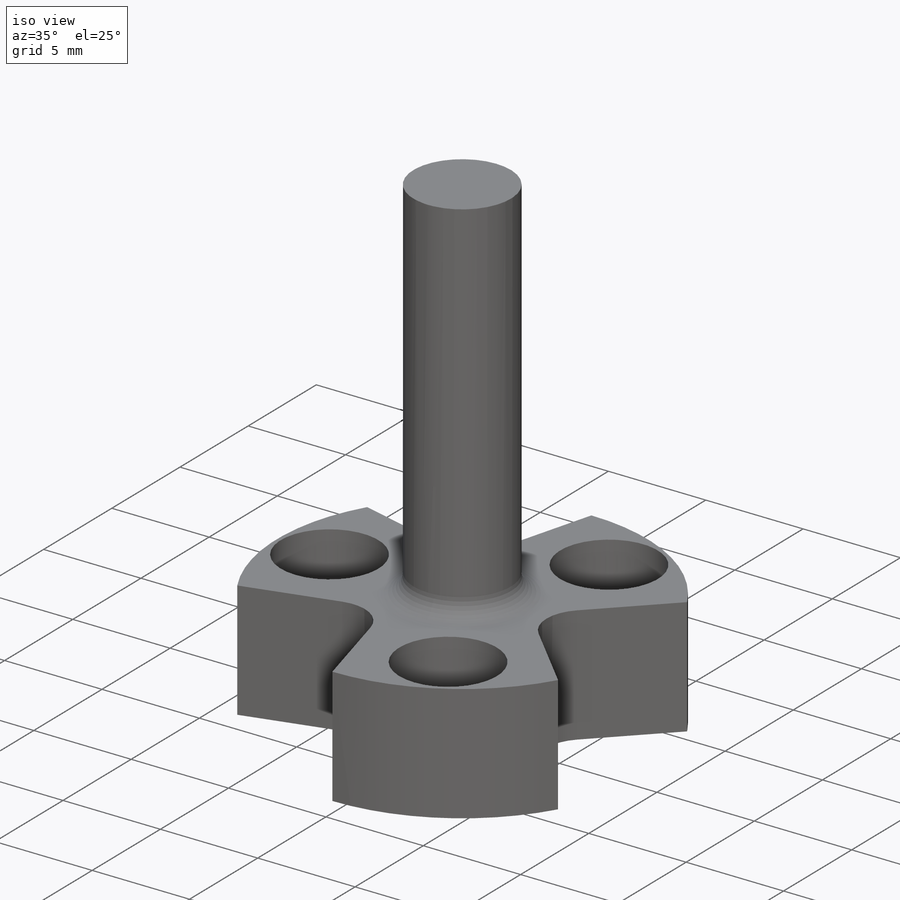
[diagram: iso view]
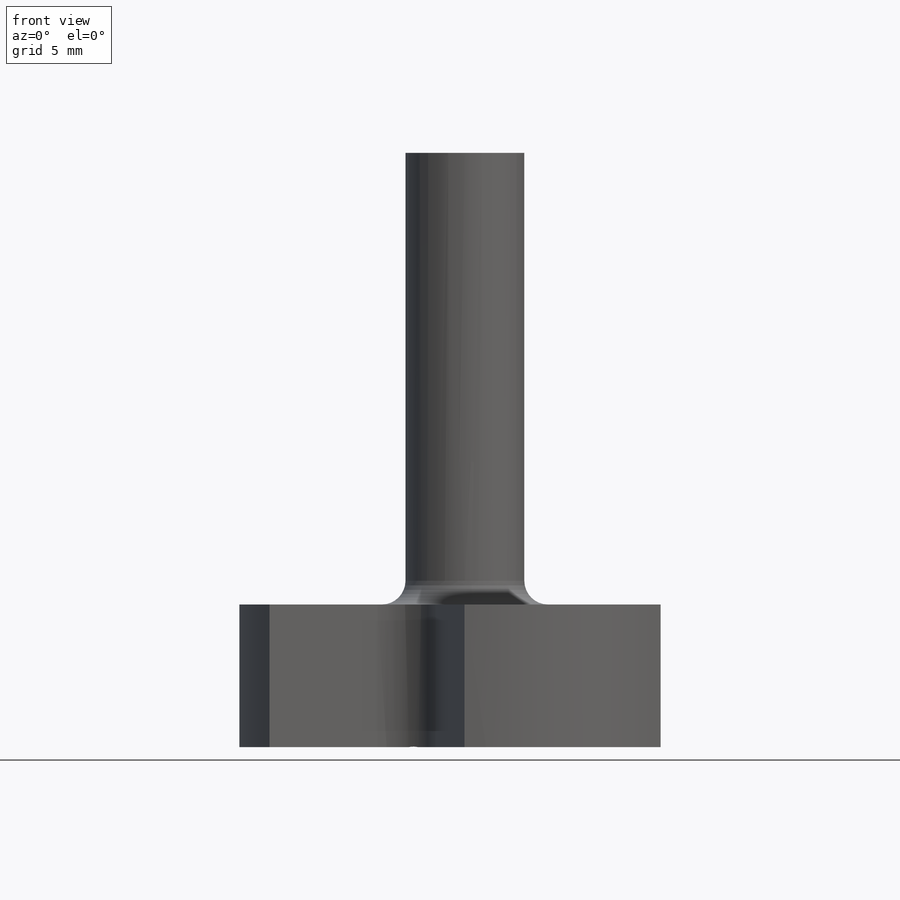
[diagram: front view]
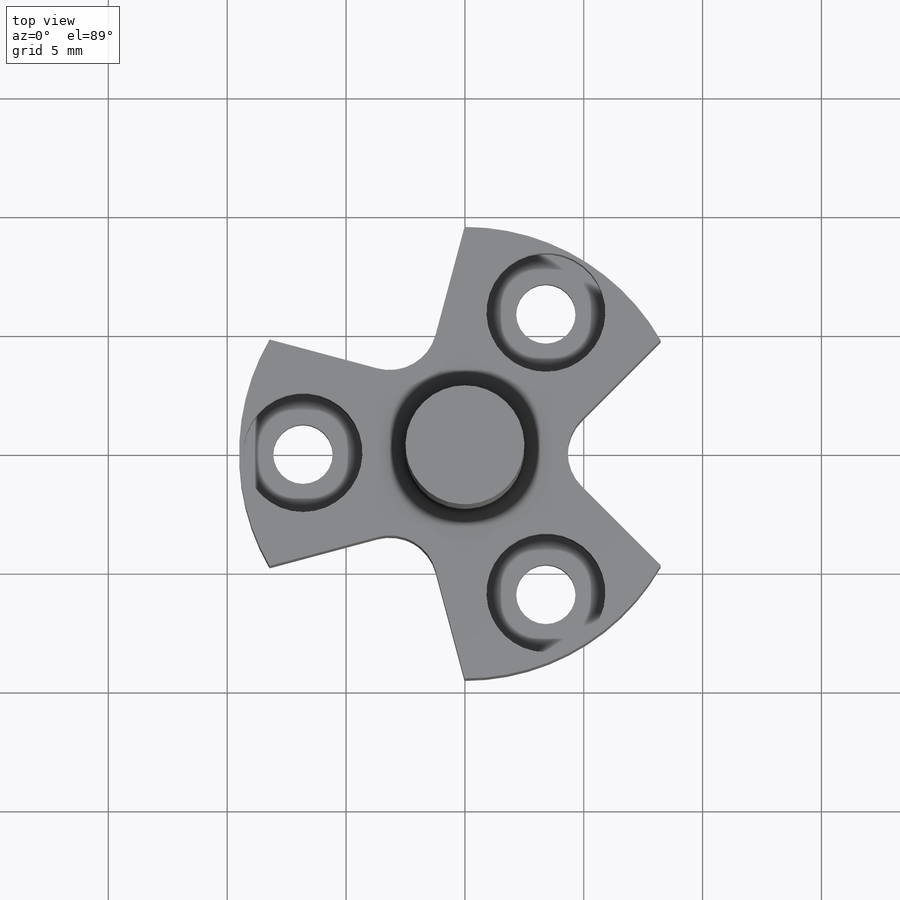
[diagram: top view]
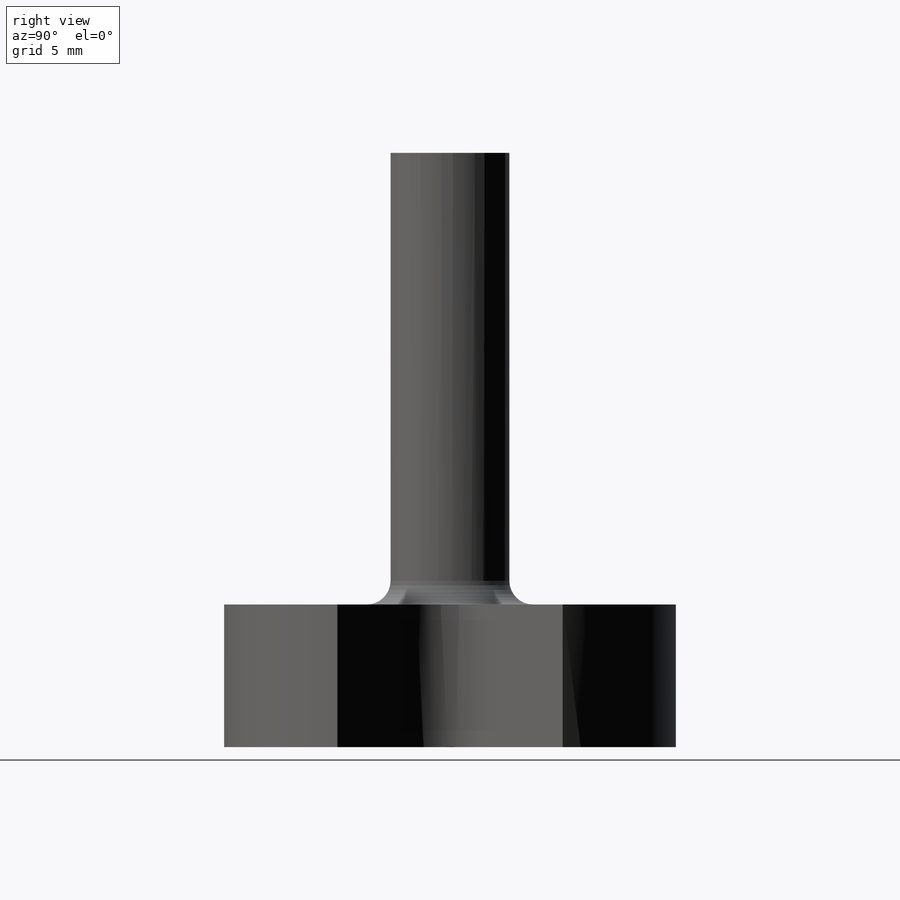
[diagram: right view]
SOLIDWORKS PART (.sldprt)
format: sldprt  version: not decoded by parser v0  size: 328,704 bytes
history: native  units: mm
features: sketch x6, extrude x2, cut_extrude x2, thread x2, fillet x2, material x1, hole x1, chamfer x1 (+12 scaffold rows collapsed)
feature tree (29):
  scaffold x12  (default folders/planes/origin — collapsed)
  material  "Malzeme <belirli değil>"
  sketch  "Sketch1"  dims[c1.D1=19.0mm c1.D2=5.0mm c2.D1=19.0mm c2.D3=8.0mm c2.D4=~6.516418mm c3.D4=75.0deg]
  extrude  "Boss-Extrude1"  Depth=6mm
  sketch  "Sketch2"  dims[D1=8.5mm]
  cut_extrude  "Cut-Extrude1"  Depth=2mm
  hole  "CSK for M2 Flat Head Machine Screw1"  Diameter=2.2mm Depth=6mm
  sketch  "Sketch5"  dims[D2=6.0mm]
  sketch  "Sketch4"  dims[hole-wizard template sketch: 55 standard entries collapsed; hole parameters kept: c17.Thru Hole Depth=6.0mm c17.Near C'Sink Dia.=4.4mm c17.D4=~3.666174mm c17.Near C'Sink Angle=90.0deg]
  sketch  "Sketch3"  dims[D1=5.0mm]
  extrude  "Boss-Extrude2"  [1 undecoded]
  thread  "Cosmetic Thread1"  Diameter=2mm  [1 undecoded]
  thread  "Cosmetic Thread2"  Diameter=13mm  [1 undecoded]
  fillet  "Fillet4"  Radius=1mm
  sketch  "Sketch9"  dims[c1.D1=6.5mm c1.D6=2.5mm c1.D2=4.5mm c1.D3=4.5mm c1.D4=~1.392493mm c2.D4=90.0deg c2.D5=5.9mm c2.D6=~5.880207mm c2.D2=~1.116129mm c3.D2=90.0deg c3.D3=~5.54432mm c4.D3=45.0deg c4.D4=~16.919169mm c5.D4=~49.176026deg c6.D4=3.0]
  cut_extrude  "Cut-Extrude3"  [1 undecoded]
  fillet  "Fillet6"  Radius=2mm
  chamfer  "Chamfer1"  Distance=0.1mm Angle=45deg
decode coverage: 14 of 16 modeling features carry decoded parameters
note: ~ marks probable driven/reference dimensions
note: 4 parameter values undecoded
note: suppression state not decoded; provenance and decode notes live in map.json
